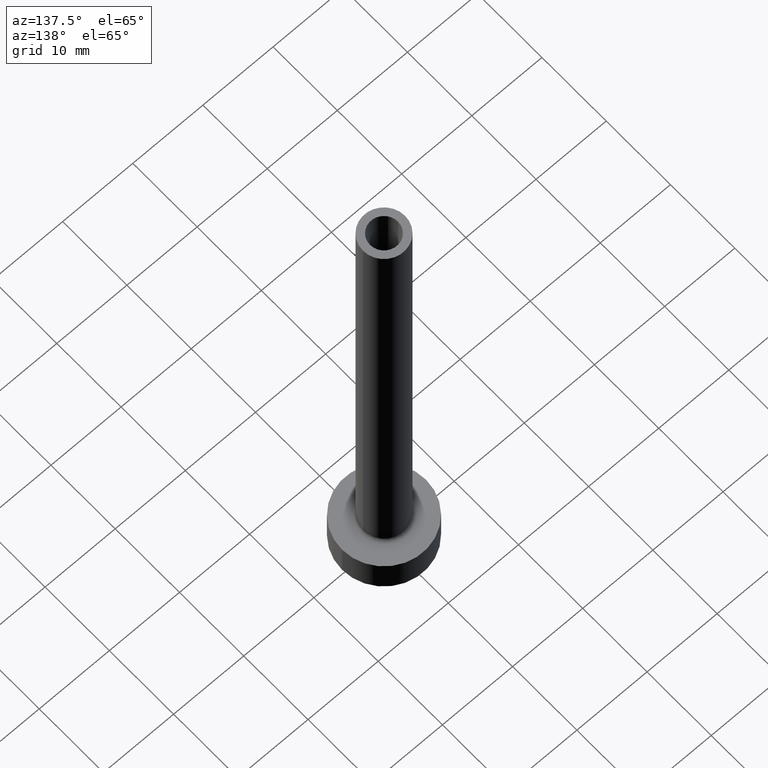
[diagram: clean part render]
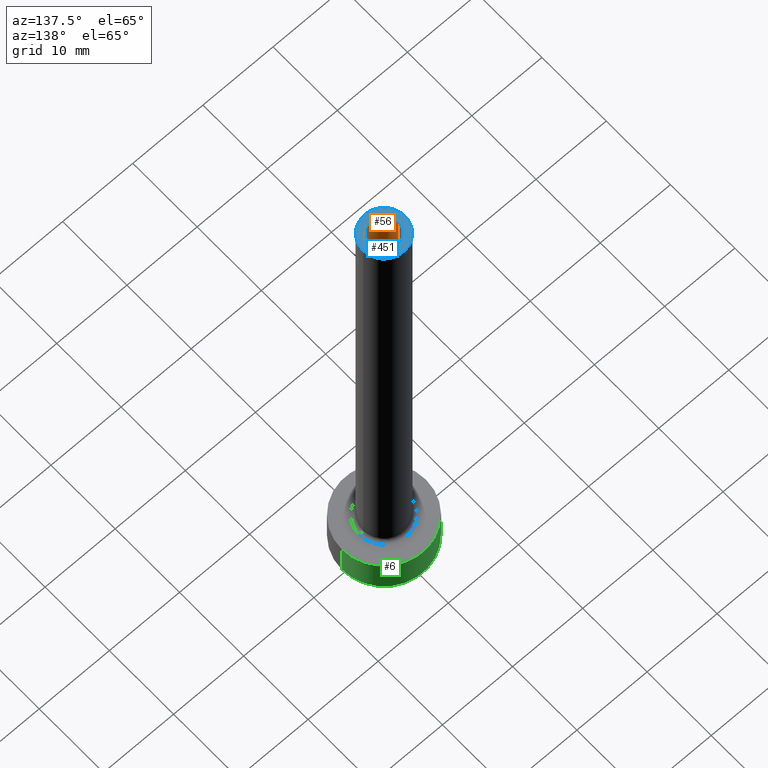
[diagram: same view with three faces highlighted in distinct colors, each labeled with its STEP entity id]
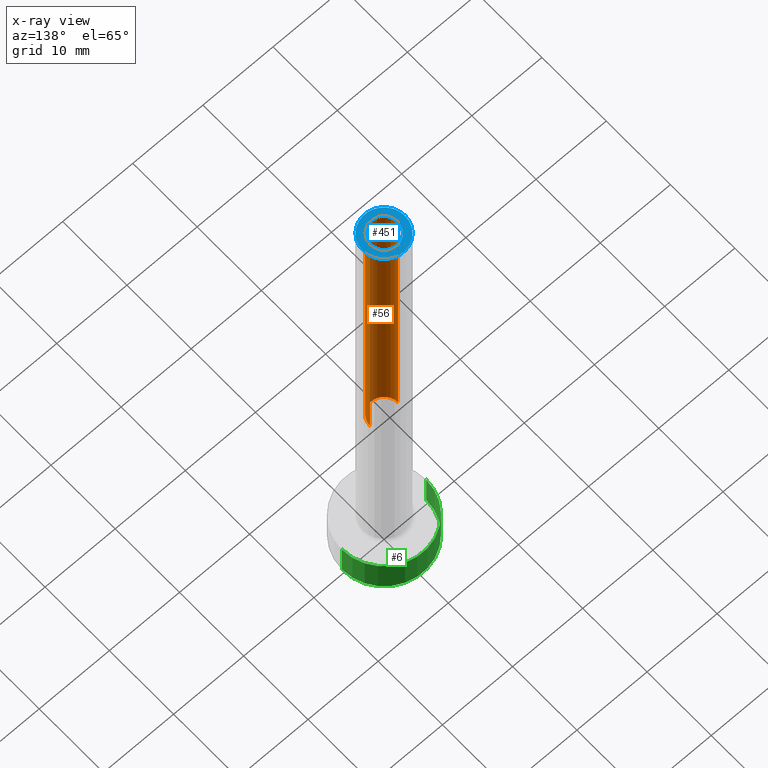
[diagram: x-ray of the same camera — body ghosted, the three highlighted faces saturated]
A machine part, auxiliary view with three faces highlighted in distinct colors.
The next image is the same camera in x-ray (body ghosted, the three faces saturated) — at least one of them is partly hidden behind the body in this view.
Their STEP definitions:

[orange] entity #56 — the highlighted cylindrical surface (edge-blend (fillet) strip) has radius 2 mm, axis along (0, 0, -1).
#1 = LINE ( 'NONE', #241, #173 ) ;
#7 = AXIS2_PLACEMENT_3D ( 'NONE', #305, #148, #351 ) ;
#11 = VERTEX_POINT ( 'NONE', #143 ) ;
#17 = ORIENTED_EDGE ( 'NONE', *, *, #277, .F. ) ;
#23 = CARTESIAN_POINT ( 'NONE',  ( 0.000000000000000000, 0.000000000000000000, 30.00000000000001421 ) ) ;
#25 = DIRECTION ( 'NONE',  ( 0.000000000000000000, 0.000000000000000000, -1.000000000000000000 ) ) ;
#26 = DIRECTION ( 'NONE',  ( 0.000000000000000000, 0.000000000000000000, 1.000000000000000000 ) ) ;
#29 = CARTESIAN_POINT ( 'NONE',  ( -2.000000000000000000, 0.000000000000000000, 75.00000000000001421 ) ) ;
#56 = ADVANCED_FACE ( 'NONE', ( #247 ), #338, .F. ) ;
#58 = VERTEX_POINT ( 'NONE', #29 ) ;
#69 = DIRECTION ( 'NONE',  ( 0.000000000000000000, 0.000000000000000000, -1.000000000000000000 ) ) ;
#92 = DIRECTION ( 'NONE',  ( 0.000000000000000000, 0.000000000000000000, 1.000000000000000000 ) ) ;
#93 = ORIENTED_EDGE ( 'NONE', *, *, #405, .T. ) ;
#113 = AXIS2_PLACEMENT_3D ( 'NONE', #23, #92, #370 ) ;
#143 = CARTESIAN_POINT ( 'NONE',  ( 2.000000000000000000, 2.449293598294705921E-16, 30.00000000000001421 ) ) ;
#146 = EDGE_CURVE ( 'NONE', #335, #11, #416, .T. ) ;
#148 = DIRECTION ( 'NONE',  ( 0.000000000000000000, 0.000000000000000000, -1.000000000000000000 ) ) ;
#161 = CIRCLE ( 'NONE', #220, 2.000000000000000000 ) ;
#173 = VECTOR ( 'NONE', #25, 1000.000000000000000 ) ;
#179 = EDGE_LOOP ( 'NONE', ( #406, #93, #386, #17 ) ) ;
#198 = EDGE_CURVE ( 'NONE', #58, #294, #161, .T. ) ;
#220 = AXIS2_PLACEMENT_3D ( 'NONE', #264, #26, #259 ) ;
#238 = CARTESIAN_POINT ( 'NONE',  ( -2.000000000000000000, 0.000000000000000000, 75.00000000000001421 ) ) ;
#241 = CARTESIAN_POINT ( 'NONE',  ( 2.000000000000000000, 2.449293598294705921E-16, 75.00000000000001421 ) ) ;
#247 = FACE_OUTER_BOUND ( 'NONE', #179, .T. ) ;
#259 = DIRECTION ( 'NONE',  ( 1.000000000000000000, 0.000000000000000000, 0.000000000000000000 ) ) ;
#264 = CARTESIAN_POINT ( 'NONE',  ( 0.000000000000000000, 0.000000000000000000, 75.00000000000001421 ) ) ;
#277 = EDGE_CURVE ( 'NONE', #58, #335, #342, .T. ) ;
#294 = VERTEX_POINT ( 'NONE', #376 ) ;
#305 = CARTESIAN_POINT ( 'NONE',  ( 0.000000000000000000, 0.000000000000000000, 75.00000000000001421 ) ) ;
#314 = CARTESIAN_POINT ( 'NONE',  ( -2.000000000000000000, 0.000000000000000000, 30.00000000000001421 ) ) ;
#325 = VECTOR ( 'NONE', #69, 1000.000000000000000 ) ;
#335 = VERTEX_POINT ( 'NONE', #314 ) ;
#338 = CYLINDRICAL_SURFACE ( 'NONE', #7, 2.000000000000000000 ) ;
#342 = LINE ( 'NONE', #238, #325 ) ;
#351 = DIRECTION ( 'NONE',  ( -1.000000000000000000, 0.000000000000000000, 0.000000000000000000 ) ) ;
#370 = DIRECTION ( 'NONE',  ( 1.000000000000000000, 0.000000000000000000, 0.000000000000000000 ) ) ;
#376 = CARTESIAN_POINT ( 'NONE',  ( 2.000000000000000000, 2.449293598294705921E-16, 75.00000000000001421 ) ) ;
#386 = ORIENTED_EDGE ( 'NONE', *, *, #146, .F. ) ;
#405 = EDGE_CURVE ( 'NONE', #294, #11, #1, .T. ) ;
#406 = ORIENTED_EDGE ( 'NONE', *, *, #198, .T. ) ;
#416 = CIRCLE ( 'NONE', #113, 2.000000000000000000 ) ;

[blue] entity #451 — the highlighted planar face has unit normal (0, 0, 1).
#19 = AXIS2_PLACEMENT_3D ( 'NONE', #372, #262, #160 ) ;
#26 = DIRECTION ( 'NONE',  ( 0.000000000000000000, 0.000000000000000000, 1.000000000000000000 ) ) ;
#27 = CIRCLE ( 'NONE', #456, 3.000000000000000444 ) ;
#29 = CARTESIAN_POINT ( 'NONE',  ( -2.000000000000000000, 0.000000000000000000, 75.00000000000001421 ) ) ;
#58 = VERTEX_POINT ( 'NONE', #29 ) ;
#74 = CARTESIAN_POINT ( 'NONE',  ( 0.000000000000000000, 0.000000000000000000, 75.00000000000001421 ) ) ;
#75 = ORIENTED_EDGE ( 'NONE', *, *, #352, .T. ) ;
#77 = CARTESIAN_POINT ( 'NONE',  ( 0.000000000000000000, 0.000000000000000000, 75.00000000000001421 ) ) ;
#90 = EDGE_CURVE ( 'NONE', #294, #58, #275, .T. ) ;
#125 = EDGE_LOOP ( 'NONE', ( #75, #139 ) ) ;
#139 = ORIENTED_EDGE ( 'NONE', *, *, #439, .T. ) ;
#149 = CARTESIAN_POINT ( 'NONE',  ( -3.000000000000000444, 0.000000000000000000, 75.00000000000001421 ) ) ;
#156 = PLANE ( 'NONE',  #298 ) ;
#160 = DIRECTION ( 'NONE',  ( 1.000000000000000000, 0.000000000000000000, 0.000000000000000000 ) ) ;
#161 = CIRCLE ( 'NONE', #220, 2.000000000000000000 ) ;
#174 = DIRECTION ( 'NONE',  ( 1.000000000000000000, 0.000000000000000000, 0.000000000000000000 ) ) ;
#178 = CARTESIAN_POINT ( 'NONE',  ( 0.000000000000000000, 0.000000000000000000, 75.00000000000001421 ) ) ;
#180 = DIRECTION ( 'NONE',  ( 0.000000000000000000, 0.000000000000000000, 1.000000000000000000 ) ) ;
#198 = EDGE_CURVE ( 'NONE', #58, #294, #161, .T. ) ;
#213 = DIRECTION ( 'NONE',  ( 0.000000000000000000, 0.000000000000000000, 1.000000000000000000 ) ) ;
#220 = AXIS2_PLACEMENT_3D ( 'NONE', #264, #26, #259 ) ;
#234 = EDGE_LOOP ( 'NONE', ( #283, #280 ) ) ;
#259 = DIRECTION ( 'NONE',  ( 1.000000000000000000, 0.000000000000000000, 0.000000000000000000 ) ) ;
#262 = DIRECTION ( 'NONE',  ( 0.000000000000000000, 0.000000000000000000, 1.000000000000000000 ) ) ;
#264 = CARTESIAN_POINT ( 'NONE',  ( 0.000000000000000000, 0.000000000000000000, 75.00000000000001421 ) ) ;
#275 = CIRCLE ( 'NONE', #19, 2.000000000000000000 ) ;
#280 = ORIENTED_EDGE ( 'NONE', *, *, #90, .F. ) ;
#283 = ORIENTED_EDGE ( 'NONE', *, *, #198, .F. ) ;
#288 = DIRECTION ( 'NONE',  ( 0.000000000000000000, 0.000000000000000000, 1.000000000000000000 ) ) ;
#289 = FACE_OUTER_BOUND ( 'NONE', #125, .T. ) ;
#290 = DIRECTION ( 'NONE',  ( 1.000000000000000000, 0.000000000000000000, 0.000000000000000000 ) ) ;
#294 = VERTEX_POINT ( 'NONE', #376 ) ;
#298 = AXIS2_PLACEMENT_3D ( 'NONE', #178, #213, #324 ) ;
#324 = DIRECTION ( 'NONE',  ( 1.000000000000000000, 0.000000000000000000, -0.000000000000000000 ) ) ;
#333 = VERTEX_POINT ( 'NONE', #428 ) ;
#352 = EDGE_CURVE ( 'NONE', #392, #333, #27, .T. ) ;
#368 = CIRCLE ( 'NONE', #390, 3.000000000000000444 ) ;
#372 = CARTESIAN_POINT ( 'NONE',  ( 0.000000000000000000, 0.000000000000000000, 75.00000000000001421 ) ) ;
#376 = CARTESIAN_POINT ( 'NONE',  ( 2.000000000000000000, 2.449293598294705921E-16, 75.00000000000001421 ) ) ;
#390 = AXIS2_PLACEMENT_3D ( 'NONE', #77, #288, #290 ) ;
#392 = VERTEX_POINT ( 'NONE', #149 ) ;
#401 = FACE_BOUND ( 'NONE', #234, .T. ) ;
#428 = CARTESIAN_POINT ( 'NONE',  ( 3.000000000000000444, 3.673940397442060361E-16, 75.00000000000001421 ) ) ;
#439 = EDGE_CURVE ( 'NONE', #333, #392, #368, .T. ) ;
#451 = ADVANCED_FACE ( 'NONE', ( #401, #289 ), #156, .T. ) ;
#456 = AXIS2_PLACEMENT_3D ( 'NONE', #74, #180, #174 ) ;

[green] entity #6 — the highlighted cylindrical surface (partial cylindrical patch) has radius 6 mm, axis along (-0, -0, -1).
#2 = DIRECTION ( 'NONE',  ( -1.000000000000000000, 0.000000000000000000, 0.000000000000000000 ) ) ;
#3 = DIRECTION ( 'NONE',  ( -0.000000000000000000, -0.000000000000000000, -1.000000000000000000 ) ) ;
#6 = ADVANCED_FACE ( 'NONE', ( #313 ), #427, .T. ) ;
#22 = CARTESIAN_POINT ( 'NONE',  ( -6.000000000000000888, 0.000000000000000000, 5.000000000000000000 ) ) ;
#57 = CIRCLE ( 'NONE', #441, 6.000000000000000888 ) ;
#67 = CARTESIAN_POINT ( 'NONE',  ( -6.000000000000000888, 0.000000000000000000, 0.000000000000000000 ) ) ;
#79 = CIRCLE ( 'NONE', #229, 6.000000000000000888 ) ;
#103 = CARTESIAN_POINT ( 'NONE',  ( 6.000000000000000888, 7.347880794884120722E-16, 5.000000000000000000 ) ) ;
#105 = CARTESIAN_POINT ( 'NONE',  ( 6.000000000000000888, 7.347880794884120722E-16, 0.000000000000000000 ) ) ;
#120 = VERTEX_POINT ( 'NONE', #22 ) ;
#129 = CARTESIAN_POINT ( 'NONE',  ( -6.000000000000000888, 0.000000000000000000, 5.000000000000000000 ) ) ;
#132 = CARTESIAN_POINT ( 'NONE',  ( 6.000000000000000888, 7.347880794884120722E-16, 5.000000000000000000 ) ) ;
#142 = CARTESIAN_POINT ( 'NONE',  ( 0.000000000000000000, 0.000000000000000000, 0.000000000000000000 ) ) ;
#164 = VECTOR ( 'NONE', #3, 1000.000000000000000 ) ;
#183 = AXIS2_PLACEMENT_3D ( 'NONE', #201, #206, #2 ) ;
#193 = VECTOR ( 'NONE', #278, 1000.000000000000000 ) ;
#201 = CARTESIAN_POINT ( 'NONE',  ( 0.000000000000000000, 0.000000000000000000, 5.000000000000000000 ) ) ;
#206 = DIRECTION ( 'NONE',  ( -0.000000000000000000, -0.000000000000000000, -1.000000000000000000 ) ) ;
#207 = DIRECTION ( 'NONE',  ( 1.000000000000000000, 0.000000000000000000, 0.000000000000000000 ) ) ;
#229 = AXIS2_PLACEMENT_3D ( 'NONE', #461, #380, #207 ) ;
#233 = EDGE_CURVE ( 'NONE', #316, #120, #79, .T. ) ;
#249 = VERTEX_POINT ( 'NONE', #105 ) ;
#276 = ORIENTED_EDGE ( 'NONE', *, *, #362, .T. ) ;
#278 = DIRECTION ( 'NONE',  ( -0.000000000000000000, -0.000000000000000000, -1.000000000000000000 ) ) ;
#284 = LINE ( 'NONE', #103, #164 ) ;
#286 = EDGE_CURVE ( 'NONE', #120, #307, #318, .T. ) ;
#291 = ORIENTED_EDGE ( 'NONE', *, *, #233, .F. ) ;
#307 = VERTEX_POINT ( 'NONE', #67 ) ;
#310 = DIRECTION ( 'NONE',  ( 1.000000000000000000, 0.000000000000000000, 0.000000000000000000 ) ) ;
#313 = FACE_OUTER_BOUND ( 'NONE', #326, .T. ) ;
#316 = VERTEX_POINT ( 'NONE', #132 ) ;
#318 = LINE ( 'NONE', #129, #193 ) ;
#326 = EDGE_LOOP ( 'NONE', ( #291, #276, #388, #361 ) ) ;
#334 = DIRECTION ( 'NONE',  ( 0.000000000000000000, 0.000000000000000000, 1.000000000000000000 ) ) ;
#361 = ORIENTED_EDGE ( 'NONE', *, *, #286, .F. ) ;
#362 = EDGE_CURVE ( 'NONE', #316, #249, #284, .T. ) ;
#380 = DIRECTION ( 'NONE',  ( 0.000000000000000000, 0.000000000000000000, 1.000000000000000000 ) ) ;
#388 = ORIENTED_EDGE ( 'NONE', *, *, #412, .T. ) ;
#412 = EDGE_CURVE ( 'NONE', #249, #307, #57, .T. ) ;
#427 = CYLINDRICAL_SURFACE ( 'NONE', #183, 6.000000000000000888 ) ;
#441 = AXIS2_PLACEMENT_3D ( 'NONE', #142, #334, #310 ) ;
#461 = CARTESIAN_POINT ( 'NONE',  ( 0.000000000000000000, 0.000000000000000000, 5.000000000000000000 ) ) ;